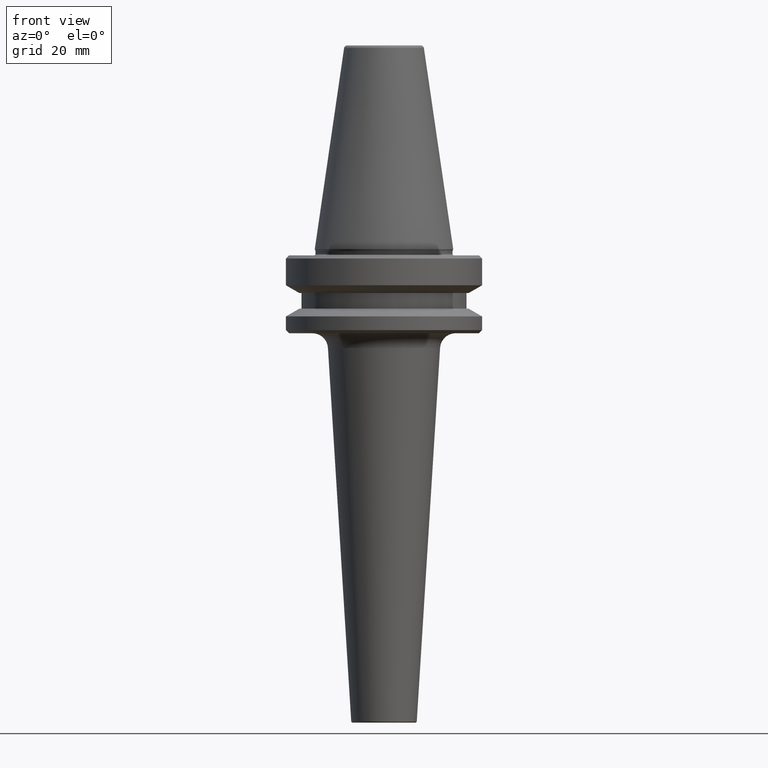
[diagram: clean part render]
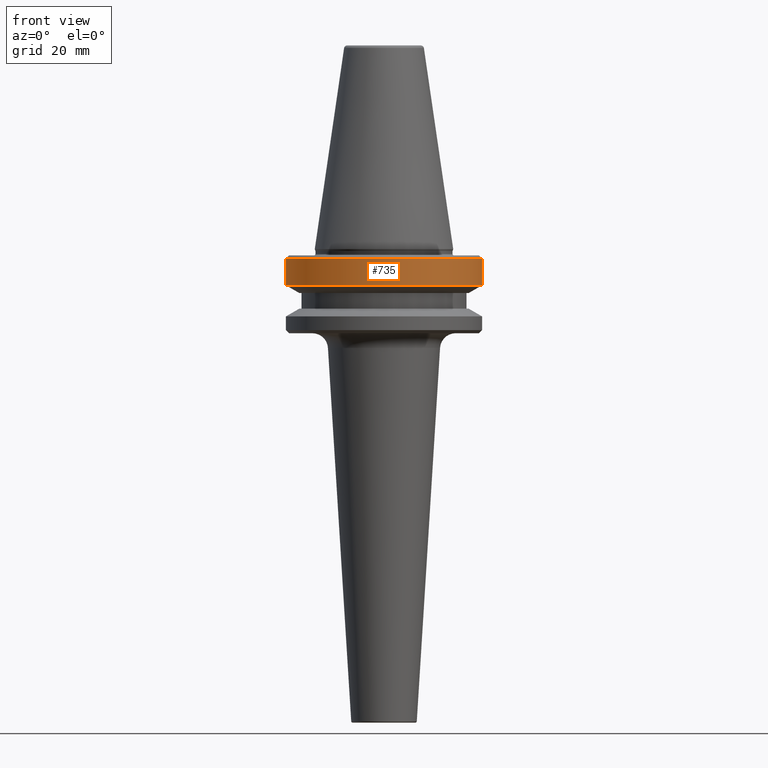
[diagram: same view with one face highlighted and labeled with its STEP entity id]
A machine part, front view. The second image highlights one B-rep face of the part: STEP entity #735.
In plain terms, the highlighted cylindrical surface (partial cylindrical patch) has radius 31.5 mm, axis along (-0, -0, 1).
Its self-contained STEP definition (entity closure, byte-faithful):
#6 = ORIENTED_EDGE ( 'NONE', *, *, #902, .T. ) ;
#17 = CARTESIAN_POINT ( 'NONE',  ( 0.0000000000000000000, 0.0000000000000000000, -68.40000000000046000 ) ) ;
#21 = CIRCLE ( 'NONE', #886, 31.50000000000008500 ) ;
#26 = ORIENTED_EDGE ( 'NONE', *, *, #103, .F. ) ;
#30 = CARTESIAN_POINT ( 'NONE',  ( 31.50000000000008500, 0.0000000000000000000, -68.40000000000046000 ) ) ;
#74 = CARTESIAN_POINT ( 'NONE',  ( -31.50000000000008500, 3.857637417314172900E-015, -76.99985799368391800 ) ) ;
#75 = DIRECTION ( 'NONE',  ( -0.0000000000000000000, -0.0000000000000000000, 1.000000000000000000 ) ) ;
#81 = VERTEX_POINT ( 'NONE', #30 ) ;
#103 = EDGE_CURVE ( 'NONE', #971, #378, #637, .T. ) ;
#118 = CARTESIAN_POINT ( 'NONE',  ( 0.0000000000000000000, 0.0000000000000000000, 6.357346922996331500 ) ) ;
#183 = CARTESIAN_POINT ( 'NONE',  ( -31.50000000000008500, 3.857637417314172900E-015, 6.357346922996331500 ) ) ;
#192 = LINE ( 'NONE', #1008, #1009 ) ;
#194 = VECTOR ( 'NONE', #75, 1000.000000000000000 ) ;
#233 = EDGE_LOOP ( 'NONE', ( #26, #6, #1017, #922 ) ) ;
#360 = DIRECTION ( 'NONE',  ( 1.000000000000000000, 0.0000000000000000000, 0.0000000000000000000 ) ) ;
#378 = VERTEX_POINT ( 'NONE', #797 ) ;
#422 = FACE_OUTER_BOUND ( 'NONE', #233, .T. ) ;
#440 = DIRECTION ( 'NONE',  ( 1.000000000000000000, 0.0000000000000000000, 0.0000000000000000000 ) ) ;
#456 = EDGE_CURVE ( 'NONE', #378, #81, #622, .T. ) ;
#501 = AXIS2_PLACEMENT_3D ( 'NONE', #17, #743, #360 ) ;
#565 = CYLINDRICAL_SURFACE ( 'NONE', #684, 31.50000000000008500 ) ;
#622 = CIRCLE ( 'NONE', #501, 31.50000000000008500 ) ;
#637 = LINE ( 'NONE', #183, #194 ) ;
#668 = CARTESIAN_POINT ( 'NONE',  ( 0.0000000000000000000, 0.0000000000000000000, -76.99985799368391800 ) ) ;
#684 = AXIS2_PLACEMENT_3D ( 'NONE', #118, #977, #739 ) ;
#686 = CARTESIAN_POINT ( 'NONE',  ( 31.50000000000008500, 0.0000000000000000000, -76.99985799368391800 ) ) ;
#687 = VERTEX_POINT ( 'NONE', #686 ) ;
#720 = EDGE_CURVE ( 'NONE', #687, #81, #192, .T. ) ;
#735 = ADVANCED_FACE ( 'NONE', ( #422 ), #565, .T. ) ;
#739 = DIRECTION ( 'NONE',  ( 1.000000000000000000, 0.0000000000000000000, 0.0000000000000000000 ) ) ;
#743 = DIRECTION ( 'NONE',  ( -0.0000000000000000000, -0.0000000000000000000, 1.000000000000000000 ) ) ;
#797 = CARTESIAN_POINT ( 'NONE',  ( -31.50000000000008500, 3.857637417314172900E-015, -68.40000000000046000 ) ) ;
#849 = DIRECTION ( 'NONE',  ( -0.0000000000000000000, -0.0000000000000000000, 1.000000000000000000 ) ) ;
#886 = AXIS2_PLACEMENT_3D ( 'NONE', #668, #909, #440 ) ;
#902 = EDGE_CURVE ( 'NONE', #971, #687, #21, .T. ) ;
#909 = DIRECTION ( 'NONE',  ( -0.0000000000000000000, -0.0000000000000000000, 1.000000000000000000 ) ) ;
#922 = ORIENTED_EDGE ( 'NONE', *, *, #456, .F. ) ;
#971 = VERTEX_POINT ( 'NONE', #74 ) ;
#977 = DIRECTION ( 'NONE',  ( -0.0000000000000000000, -0.0000000000000000000, 1.000000000000000000 ) ) ;
#1008 = CARTESIAN_POINT ( 'NONE',  ( 31.50000000000008500, 0.0000000000000000000, 6.357346922996331500 ) ) ;
#1009 = VECTOR ( 'NONE', #849, 1000.000000000000000 ) ;
#1017 = ORIENTED_EDGE ( 'NONE', *, *, #720, .T. ) ;